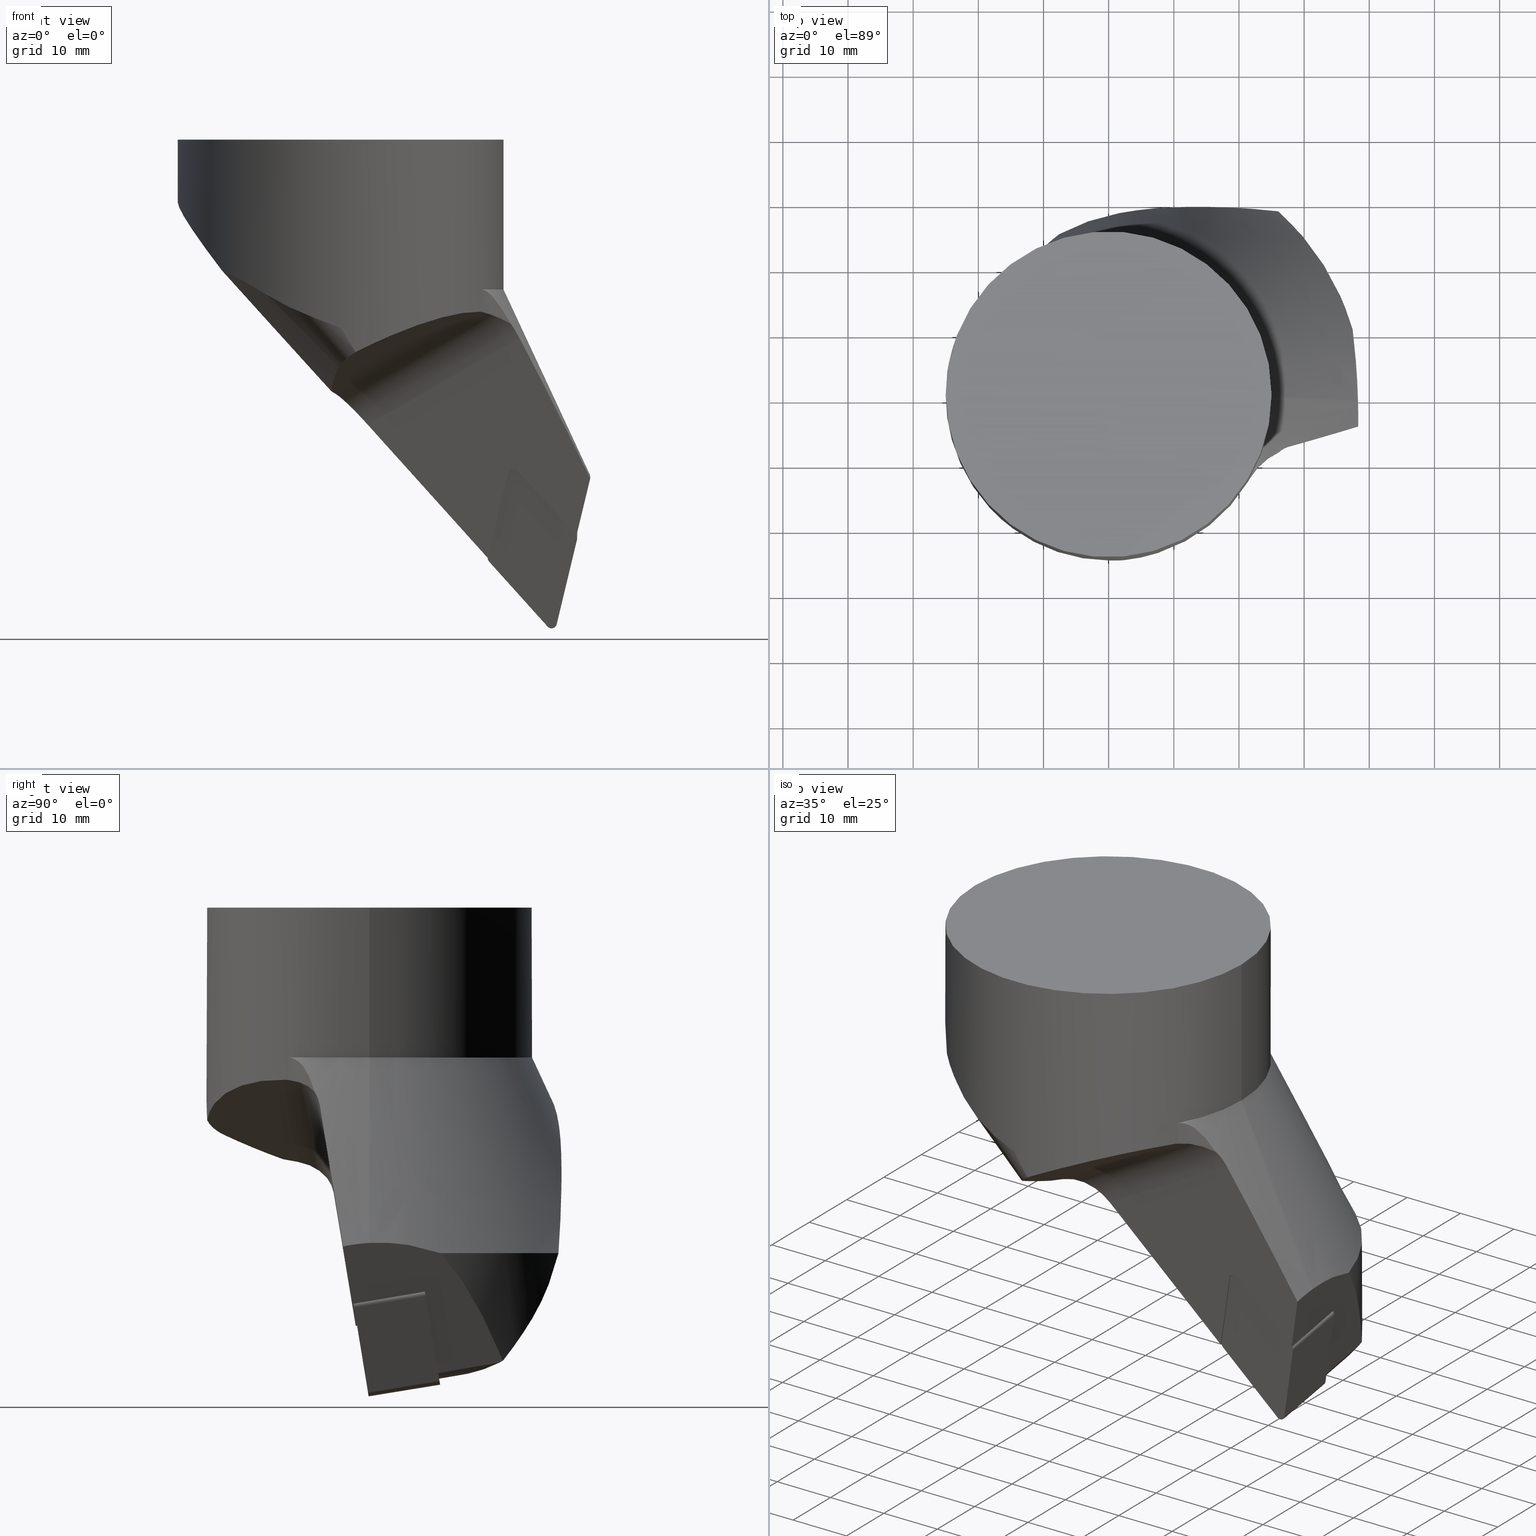
[diagram: canonical four-view strip — front | top / right | iso, engineering-drawing reading convention]
A machine part, canonical four-view strip (front | top / right | iso — engineering-drawing reading convention). The complete STEP part file that produces these views, byte-faithful:
ISO-10303-21;
HEADER;
FILE_DESCRIPTION((''),'1');
FILE_NAME('//Big_tech03/bigt/Translate/11_3D_Field/02_Step_Field/91_\X2\65CB524A30C430FC30EB\X0\/S\X2\30AB30FC30C830EA30C330B8\X0\/S50-DDJNL-33075-15.stp','2012-12-26T08:06:41',(''),(''),'Spatial Interop R18','Kubotek KeyCreator V8.5.1 (14335)',' ');
FILE_SCHEMA(('CONFIG_CONTROL_DESIGN'));
ENDSEC;
DATA;
#1=DESIGN_CONTEXT('',#27,'design');
#2=APPLICATION_PROTOCOL_DEFINITION('INTERNATIONAL STANDARD','config_control_design',1994,#27);
#3=PRODUCT_CATEGORY_RELATIONSHIP('NONE','NONE',#28,#29);
#4=DATE_AND_TIME(#30,#31);
#5=DATE_TIME_ROLE('creation_date');
#6=DATE_TIME_ROLE('classification_date');
#7=PERSON_AND_ORGANIZATION_ROLE('creator');
#8=PERSON_AND_ORGANIZATION_ROLE('design_supplier');
#9=PERSON_AND_ORGANIZATION_ROLE('classification_officer');
#10=PERSON_AND_ORGANIZATION_ROLE('design_owner');
#11=APPROVAL_PERSON_ORGANIZATION(#32,#33,#34);
#12=APPROVAL_DATE_TIME(#4,#33);
#13=CC_DESIGN_APPROVAL(#33,(#35,#36,#37));
#14=CC_DESIGN_DATE_AND_TIME_ASSIGNMENT(#4,#5,(#37));
#15=CC_DESIGN_DATE_AND_TIME_ASSIGNMENT(#4,#6,(#35));
#16=CC_DESIGN_PERSON_AND_ORGANIZATION_ASSIGNMENT(#32,#10,(#38));
#17=CC_DESIGN_PERSON_AND_ORGANIZATION_ASSIGNMENT(#32,#7,(#37));
#18=CC_DESIGN_PERSON_AND_ORGANIZATION_ASSIGNMENT(#32,#7,(#36));
#19=CC_DESIGN_PERSON_AND_ORGANIZATION_ASSIGNMENT(#32,#8,(#36));
#20=CC_DESIGN_SECURITY_CLASSIFICATION(#35,(#36));
#21=CC_DESIGN_PERSON_AND_ORGANIZATION_ASSIGNMENT(#32,#9,(#35));
#22=SHAPE_DEFINITION_REPRESENTATION(#39,#40);
#23= (GEOMETRIC_REPRESENTATION_CONTEXT(3)GLOBAL_UNCERTAINTY_ASSIGNED_CONTEXT((#43))GLOBAL_UNIT_ASSIGNED_CONTEXT((#45,#46,#47))REPRESENTATION_CONTEXT('NONE','WORKSPACE'));
#27=APPLICATION_CONTEXT('CONFIGURATION CONTROLLED 3D DESIGNS OF MECHANICAL PARTS AND ASSEMBLIES');
#28=PRODUCT_CATEGORY('part','NONE');
#29=PRODUCT_RELATED_PRODUCT_CATEGORY('detail',' ',(#38));
#30=CALENDAR_DATE(2012,26,11);
#31=LOCAL_TIME(17,6,41.0,#49);
#32=PERSON_AND_ORGANIZATION(#50,#51);
#33=APPROVAL(#52,'SOLID MODEL');
#34=APPROVAL_ROLE('APPROVED');
#35=SECURITY_CLASSIFICATION('','',#53);
#36=PRODUCT_DEFINITION_FORMATION_WITH_SPECIFIED_SOURCE(' ','NONE',#38,.NOT_KNOWN.);
#37=PRODUCT_DEFINITION('NONE','NONE',#36,#1);
#38=PRODUCT('1','1','PART-1-DESC',(#54));
#39=PRODUCT_DEFINITION_SHAPE('NONE','NONE',#37);
#40=ADVANCED_BREP_SHAPE_REPRESENTATION('1',(#55,#56),#23);
#43=UNCERTAINTY_MEASURE_WITH_UNIT(LENGTH_MEASURE(1.0E-006),#45,'','');
#45= (CONVERSION_BASED_UNIT('MILLIMETRE',#59)LENGTH_UNIT()NAMED_UNIT(#62));
#46= (NAMED_UNIT(#64)PLANE_ANGLE_UNIT()SI_UNIT($,.RADIAN.));
#47= (NAMED_UNIT(#64)SOLID_ANGLE_UNIT()SI_UNIT($,.STERADIAN.));
#49=COORDINATED_UNIVERSAL_TIME_OFFSET(9,0,.AHEAD.);
#50=PERSON('','UNSPECIFIED',$,$,$,$);
#51=ORGANIZATION('UNSPECIFIED','UNSPECIFIED','UNSPECIFIED');
#52=APPROVAL_STATUS('approved');
#53=SECURITY_CLASSIFICATION_LEVEL('unclassified');
#54=MECHANICAL_CONTEXT('',#27,'mechanical');
#55=MANIFOLD_SOLID_BREP('1',#70);
#56=AXIS2_PLACEMENT_3D('',#71,#72,#73);
#59=LENGTH_MEASURE_WITH_UNIT(LENGTH_MEASURE(1.0),#74);
#62=DIMENSIONAL_EXPONENTS(1.0,0.0,0.0,0.0,0.0,0.0,0.0);
#64=DIMENSIONAL_EXPONENTS(0.0,0.0,0.0,0.0,0.0,0.0,0.0);
#70=CLOSED_SHELL('',(#75,#76,#77,#78,#79,#80,#81,#82,#83,#84,#85,#86,#87,#88,#89,#90,#91,#92,#93,#94,#95,#96,#97,#98,#99,#100,#101,#102,#103,#104));
#71=CARTESIAN_POINT('',(0.0,0.0,0.0));
#72=DIRECTION('',(0.0,0.0,1.0));
#73=DIRECTION('',(1.0,0.0,0.0));
#74= (NAMED_UNIT(#62)LENGTH_UNIT()SI_UNIT(.MILLI.,.METRE.));
#75=ADVANCED_FACE('',(#106),#107,.T.);
#76=ADVANCED_FACE('',(#108),#109,.T.);
#77=ADVANCED_FACE('',(#110),#111,.T.);
#78=ADVANCED_FACE('',(#112),#113,.T.);
#79=ADVANCED_FACE('',(#114),#115,.T.);
#80=ADVANCED_FACE('',(#116),#117,.T.);
#81=ADVANCED_FACE('',(#118),#119,.F.);
#82=ADVANCED_FACE('',(#120),#121,.F.);
#83=ADVANCED_FACE('',(#122),#123,.F.);
#84=ADVANCED_FACE('',(#124),#125,.F.);
#85=ADVANCED_FACE('',(#126),#127,.F.);
#86=ADVANCED_FACE('',(#128),#129,.F.);
#87=ADVANCED_FACE('',(#130),#131,.F.);
#88=ADVANCED_FACE('',(#132),#133,.T.);
#89=ADVANCED_FACE('',(#134),#135,.T.);
#90=ADVANCED_FACE('',(#136),#137,.T.);
#91=ADVANCED_FACE('',(#138),#139,.T.);
#92=ADVANCED_FACE('',(#140),#141,.F.);
#93=ADVANCED_FACE('',(#142),#143,.T.);
#94=ADVANCED_FACE('',(#144),#145,.T.);
#95=ADVANCED_FACE('',(#146),#147,.T.);
#96=ADVANCED_FACE('',(#148),#149,.F.);
#97=ADVANCED_FACE('',(#150),#151,.F.);
#98=ADVANCED_FACE('',(#152),#153,.F.);
#99=ADVANCED_FACE('',(#154),#155,.F.);
#100=ADVANCED_FACE('',(#156),#157,.T.);
#101=ADVANCED_FACE('',(#158),#159,.T.);
#102=ADVANCED_FACE('',(#160),#161,.T.);
#103=ADVANCED_FACE('',(#162),#163,.T.);
#104=ADVANCED_FACE('',(#164),#165,.T.);
#106=FACE_OUTER_BOUND('',#166,.T.);
#107=PLANE('',#167);
#108=FACE_OUTER_BOUND('',#168,.T.);
#109=CYLINDRICAL_SURFACE('',#169,0.8);
#110=FACE_OUTER_BOUND('',#170,.T.);
#111=PLANE('',#171);
#112=FACE_OUTER_BOUND('',#172,.T.);
#113=CYLINDRICAL_SURFACE('',#173,0.8);
#114=FACE_OUTER_BOUND('',#174,.T.);
#115=PLANE('',#175);
#116=FACE_OUTER_BOUND('',#176,.T.);
#117=CYLINDRICAL_SURFACE('',#177,0.8);
#118=FACE_OUTER_BOUND('',#178,.T.);
#119=PLANE('',#179);
#120=FACE_OUTER_BOUND('',#180,.T.);
#121=CYLINDRICAL_SURFACE('',#181,0.8);
#122=FACE_OUTER_BOUND('',#182,.T.);
#123=PLANE('',#183);
#124=FACE_OUTER_BOUND('',#184,.T.);
#125=CYLINDRICAL_SURFACE('',#185,0.8);
#126=FACE_OUTER_BOUND('',#186,.T.);
#127=PLANE('',#187);
#128=FACE_OUTER_BOUND('',#188,.T.);
#129=CYLINDRICAL_SURFACE('',#189,0.8);
#130=FACE_OUTER_BOUND('',#190,.T.);
#131=PLANE('',#191);
#132=FACE_OUTER_BOUND('',#192,.T.);
#133=CYLINDRICAL_SURFACE('',#193,1.19999999999998);
#134=FACE_OUTER_BOUND('',#194,.T.);
#135=CONICAL_SURFACE('',#195,26.9313548263841,0.436332312500001);
#136=FACE_OUTER_BOUND('',#196,.T.);
#137=CYLINDRICAL_SURFACE('',#197,25.0);
#138=FACE_OUTER_BOUND('',#198,.T.);
#139=CYLINDRICAL_SURFACE('',#199,1.2);
#140=FACE_OUTER_BOUND('',#200,.T.);
#141=PLANE('',#201);
#142=FACE_OUTER_BOUND('',#202,.T.);
#143=CYLINDRICAL_SURFACE('',#203,50.0);
#144=FACE_OUTER_BOUND('',#204,.T.);
#145=CYLINDRICAL_SURFACE('',#205,25.0);
#146=FACE_OUTER_BOUND('',#206,.T.);
#147=CONICAL_SURFACE('',#207,27.0006661589101,0.4363323125);
#148=FACE_OUTER_BOUND('',#208,.T.);
#149=CYLINDRICAL_SURFACE('',#209,8.00000000000002);
#150=FACE_OUTER_BOUND('',#210,.T.);
#151=PLANE('',#211);
#152=FACE_OUTER_BOUND('',#212,.T.);
#153=PLANE('',#213);
#154=FACE_OUTER_BOUND('',#214,.T.);
#155=CYLINDRICAL_SURFACE('',#215,10.0);
#156=FACE_OUTER_BOUND('',#216,.T.);
#157=CYLINDRICAL_SURFACE('',#217,5.0);
#158=FACE_OUTER_BOUND('',#218,.T.);
#159=CYLINDRICAL_SURFACE('',#219,50.0);
#160=FACE_OUTER_BOUND('',#220,.T.);
#161=CYLINDRICAL_SURFACE('',#221,9.99999999999998);
#162=FACE_OUTER_BOUND('',#222,.T.);
#163=CYLINDRICAL_SURFACE('',#223,39.0);
#164=FACE_OUTER_BOUND('',#224,.T.);
#165=PLANE('',#225);
#166=EDGE_LOOP('',(#226,#227,#228,#229,#230,#231,#232,#233,#234));
#167=AXIS2_PLACEMENT_3D('',#235,#236,#237);
#168=EDGE_LOOP('',(#238,#239,#240,#241));
#169=AXIS2_PLACEMENT_3D('',#242,#243,#244);
#170=EDGE_LOOP('',(#245,#246,#247,#248));
#171=AXIS2_PLACEMENT_3D('',#249,#250,#251);
#172=EDGE_LOOP('',(#252,#253,#254,#255));
#173=AXIS2_PLACEMENT_3D('',#256,#257,#258);
#174=EDGE_LOOP('',(#259,#260,#261,#262));
#175=AXIS2_PLACEMENT_3D('',#263,#264,#265);
#176=EDGE_LOOP('',(#266,#267,#268,#269));
#177=AXIS2_PLACEMENT_3D('',#270,#271,#272);
#178=EDGE_LOOP('',(#273,#274,#275,#276,#277,#278,#279,#280,#281,#282));
#179=AXIS2_PLACEMENT_3D('',#283,#284,#285);
#180=EDGE_LOOP('',(#286,#287,#288,#289));
#181=AXIS2_PLACEMENT_3D('',#290,#291,#292);
#182=EDGE_LOOP('',(#293,#294,#295,#296));
#183=AXIS2_PLACEMENT_3D('',#297,#298,#299);
#184=EDGE_LOOP('',(#300,#301,#302,#303));
#185=AXIS2_PLACEMENT_3D('',#304,#305,#306);
#186=EDGE_LOOP('',(#307,#308,#309,#310));
#187=AXIS2_PLACEMENT_3D('',#311,#312,#313);
#188=EDGE_LOOP('',(#314,#315,#316,#317));
#189=AXIS2_PLACEMENT_3D('',#318,#319,#320);
#190=EDGE_LOOP('',(#321,#322,#323,#324,#325,#326,#327,#328,#329));
#191=AXIS2_PLACEMENT_3D('',#330,#331,#332);
#192=EDGE_LOOP('',(#333,#334,#335,#336));
#193=AXIS2_PLACEMENT_3D('',#337,#338,#339);
#194=EDGE_LOOP('',(#340,#341,#342,#343,#344,#345));
#195=AXIS2_PLACEMENT_3D('',#346,#347,#348);
#196=EDGE_LOOP('',(#349,#350,#351,#352,#353));
#197=AXIS2_PLACEMENT_3D('',#354,#355,#356);
#198=EDGE_LOOP('',(#357,#358,#359,#360));
#199=AXIS2_PLACEMENT_3D('',#361,#362,#363);
#200=EDGE_LOOP('',(#364,#365,#366,#367,#368,#369,#370,#371,#372,#373,#374,#375,#376));
#201=AXIS2_PLACEMENT_3D('',#377,#378,#379);
#202=EDGE_LOOP('',(#380,#381,#382,#383,#384,#385));
#203=AXIS2_PLACEMENT_3D('',#386,#387,#388);
#204=EDGE_LOOP('',(#389,#390,#391,#392,#393,#394,#395,#396,#397,#398,#399));
#205=AXIS2_PLACEMENT_3D('',#400,#401,#402);
#206=EDGE_LOOP('',(#403,#404,#405,#406,#407,#408));
#207=AXIS2_PLACEMENT_3D('',#409,#410,#411);
#208=EDGE_LOOP('',(#412,#413,#414,#415,#416,#417));
#209=AXIS2_PLACEMENT_3D('',#418,#419,#420);
#210=EDGE_LOOP('',(#421,#422,#423,#424,#425));
#211=AXIS2_PLACEMENT_3D('',#426,#427,#428);
#212=EDGE_LOOP('',(#429,#430,#431,#432,#433,#434,#435,#436,#437));
#213=AXIS2_PLACEMENT_3D('',#438,#439,#440);
#214=EDGE_LOOP('',(#441,#442,#443));
#215=AXIS2_PLACEMENT_3D('',#444,#445,#446);
#216=EDGE_LOOP('',(#447,#448,#449,#450));
#217=AXIS2_PLACEMENT_3D('',#451,#452,#453);
#218=EDGE_LOOP('',(#454,#455,#456,#457));
#219=AXIS2_PLACEMENT_3D('',#458,#459,#460);
#220=EDGE_LOOP('',(#461,#462,#463,#464));
#221=AXIS2_PLACEMENT_3D('',#465,#466,#467);
#222=EDGE_LOOP('',(#468,#469,#470,#471));
#223=AXIS2_PLACEMENT_3D('',#472,#473,#474);
#224=EDGE_LOOP('',(#475,#476));
#225=AXIS2_PLACEMENT_3D('',#477,#478,#479);
#226=ORIENTED_EDGE('',*,*,#480,.F.);
#227=ORIENTED_EDGE('',*,*,#481,.F.);
#228=ORIENTED_EDGE('',*,*,#482,.F.);
#229=ORIENTED_EDGE('',*,*,#483,.F.);
#230=ORIENTED_EDGE('',*,*,#484,.F.);
#231=ORIENTED_EDGE('',*,*,#485,.F.);
#232=ORIENTED_EDGE('',*,*,#486,.F.);
#233=ORIENTED_EDGE('',*,*,#487,.F.);
#234=ORIENTED_EDGE('',*,*,#488,.F.);
#235=CARTESIAN_POINT('',(30.9993582105046,9.83061637929432,-66.9033376882254));
#236=DIRECTION('',(0.00316960438547729,0.986980052759554,0.160811470557257));
#237=DIRECTION('',(7.03793553541952E-020,-0.160812278350876,0.986985010591144));
#238=ORIENTED_EDGE('',*,*,#489,.F.);
#239=ORIENTED_EDGE('',*,*,#490,.T.);
#240=ORIENTED_EDGE('',*,*,#491,.F.);
#241=ORIENTED_EDGE('',*,*,#484,.T.);
#242=CARTESIAN_POINT('',(35.531957183395,8.59580846484717,-59.4140445999063));
#243=DIRECTION('',(0.00316960438547709,0.986980052759554,0.160811470557257));
#244=DIRECTION('',(0.973053548775183,0.0340325882120342,-0.228053884324762));
#245=ORIENTED_EDGE('',*,*,#492,.T.);
#246=ORIENTED_EDGE('',*,*,#493,.F.);
#247=ORIENTED_EDGE('',*,*,#485,.T.);
#248=ORIENTED_EDGE('',*,*,#491,.T.);
#249=CARTESIAN_POINT('',(36.3104000224152,8.62303453541679,-59.5964877073661));
#250=DIRECTION('',(0.973053548775185,0.0340325882120334,-0.228053884324757));
#251=DIRECTION('',(-0.228186067107871,-1.51135052082345E-018,-0.973617542353178));
#252=ORIENTED_EDGE('',*,*,#494,.T.);
#253=ORIENTED_EDGE('',*,*,#495,.F.);
#254=ORIENTED_EDGE('',*,*,#486,.T.);
#255=ORIENTED_EDGE('',*,*,#493,.T.);
#256=CARTESIAN_POINT('',(32.4077656696003,10.725976182978,-72.4263663481813));
#257=DIRECTION('',(0.00316960438547709,0.986980052759554,0.160811470557257));
#258=DIRECTION('',(-0.746982205944665,0.109251240252169,-0.655806183643769));
#259=ORIENTED_EDGE('',*,*,#496,.T.);
#260=ORIENTED_EDGE('',*,*,#497,.F.);
#261=ORIENTED_EDGE('',*,*,#487,.T.);
#262=ORIENTED_EDGE('',*,*,#495,.T.);
#263=CARTESIAN_POINT('',(31.8101799048445,10.8133771751797,-72.9510112950963));
#264=DIRECTION('',(-0.746982205944656,0.109251240252171,-0.655806183643779));
#265=DIRECTION('',(-0.659755368333982,0.0,0.751480441498308));
#266=ORIENTED_EDGE('',*,*,#498,.F.);
#267=ORIENTED_EDGE('',*,*,#488,.T.);
#268=ORIENTED_EDGE('',*,*,#497,.T.);
#269=ORIENTED_EDGE('',*,*,#499,.T.);
#270=CARTESIAN_POINT('',(23.3988339131563,9.12640044522891,-62.4314070951477));
#271=DIRECTION('',(0.0031696043854771,0.986980052759554,0.160811470557257));
#272=DIRECTION('',(-0.973053548775188,-0.0340325882120308,0.228053884324741));
#273=ORIENTED_EDGE('',*,*,#499,.F.);
#274=ORIENTED_EDGE('',*,*,#496,.F.);
#275=ORIENTED_EDGE('',*,*,#494,.F.);
#276=ORIENTED_EDGE('',*,*,#492,.F.);
#277=ORIENTED_EDGE('',*,*,#490,.F.);
#278=ORIENTED_EDGE('',*,*,#500,.F.);
#279=ORIENTED_EDGE('',*,*,#501,.F.);
#280=ORIENTED_EDGE('',*,*,#502,.F.);
#281=ORIENTED_EDGE('',*,*,#503,.F.);
#282=ORIENTED_EDGE('',*,*,#504,.F.);
#283=CARTESIAN_POINT('',(30.964143905782,-1.13473200686432,-68.6899531261165));
#284=DIRECTION('',(0.00316960438547729,0.986980052759554,0.160811470557257));
#285=DIRECTION('',(-1.08344308742029E-020,-0.160812278350876,0.986985010591144));
#286=ORIENTED_EDGE('',*,*,#504,.T.);
#287=ORIENTED_EDGE('',*,*,#505,.T.);
#288=ORIENTED_EDGE('',*,*,#506,.F.);
#289=ORIENTED_EDGE('',*,*,#507,.F.);
#290=CARTESIAN_POINT('',(23.3636513044775,-1.82907814040214,-64.2164144183333));
#291=DIRECTION('',(-0.00316960438547736,-0.986980052759554,-0.160811470557257));
#292=DIRECTION('',(-0.973053548775185,-0.0340325882120324,0.228053884324753));
#293=ORIENTED_EDGE('',*,*,#503,.T.);
#294=ORIENTED_EDGE('',*,*,#508,.T.);
#295=ORIENTED_EDGE('',*,*,#509,.F.);
#296=ORIENTED_EDGE('',*,*,#505,.F.);
#297=CARTESIAN_POINT('',(25.7093999792521,-3.98647192910258,-51.0216495625987));
#298=DIRECTION('',(-0.973053548775186,-0.0340325882120324,0.228053884324753));
#299=DIRECTION('',(0.228186067107867,0.0,0.973617542353179));
#300=ORIENTED_EDGE('',*,*,#502,.T.);
#301=ORIENTED_EDGE('',*,*,#510,.T.);
#302=ORIENTED_EDGE('',*,*,#511,.F.);
#303=ORIENTED_EDGE('',*,*,#508,.F.);
#304=CARTESIAN_POINT('',(26.4878428182722,-3.95924585853295,-51.2040926700585));
#305=DIRECTION('',(-0.00316960438547736,-0.986980052759554,-0.160811470557257));
#306=DIRECTION('',(0.746982205944652,-0.109251240252171,0.655806183643783));
#307=ORIENTED_EDGE('',*,*,#501,.T.);
#308=ORIENTED_EDGE('',*,*,#512,.T.);
#309=ORIENTED_EDGE('',*,*,#513,.F.);
#310=ORIENTED_EDGE('',*,*,#510,.F.);
#311=CARTESIAN_POINT('',(36.094360339472,-2.44707111298563,-60.6744069761769));
#312=DIRECTION('',(0.746982205944649,-0.109251240252172,0.655806183643786));
#313=DIRECTION('',(0.65975536833399,0.0,-0.751480441498301));
#314=ORIENTED_EDGE('',*,*,#500,.T.);
#315=ORIENTED_EDGE('',*,*,#514,.F.);
#316=ORIENTED_EDGE('',*,*,#515,.F.);
#317=ORIENTED_EDGE('',*,*,#512,.F.);
#318=CARTESIAN_POINT('',(35.4967745747162,-2.35967012078389,-61.1990519230919));
#319=DIRECTION('',(-0.00316960438547737,-0.986980052759554,-0.160811470557257));
#320=DIRECTION('',(0.973053548775185,0.034032588212033,-0.228053884324757));
#321=ORIENTED_EDGE('',*,*,#514,.T.);
#322=ORIENTED_EDGE('',*,*,#489,.T.);
#323=ORIENTED_EDGE('',*,*,#483,.T.);
#324=ORIENTED_EDGE('',*,*,#516,.T.);
#325=ORIENTED_EDGE('',*,*,#517,.F.);
#326=ORIENTED_EDGE('',*,*,#518,.T.);
#327=ORIENTED_EDGE('',*,*,#519,.T.);
#328=ORIENTED_EDGE('',*,*,#520,.T.);
#329=ORIENTED_EDGE('',*,*,#521,.F.);
#330=CARTESIAN_POINT('',(35.4310017147911,8.21989750612639,-62.0830437623117));
#331=DIRECTION('',(-0.972812710737959,-0.0402762684875891,0.228064140152238));
#332=DIRECTION('',(0.228249345803035,0.0,0.973602709600013));
#333=ORIENTED_EDGE('',*,*,#482,.T.);
#334=ORIENTED_EDGE('',*,*,#522,.F.);
#335=ORIENTED_EDGE('',*,*,#523,.F.);
#336=ORIENTED_EDGE('',*,*,#516,.F.);
#337=CARTESIAN_POINT('',(31.973402862197,15.740179264078,-70.2417451873097));
#338=DIRECTION('',(0.00316409313760425,-0.986981129763239,-0.160804968847038));
#339=DIRECTION('',(0.702642552196438,-0.112225359971542,0.702637112898354));
#340=ORIENTED_EDGE('',*,*,#524,.F.);
#341=ORIENTED_EDGE('',*,*,#525,.T.);
#342=ORIENTED_EDGE('',*,*,#526,.F.);
#343=ORIENTED_EDGE('',*,*,#527,.F.);
#344=ORIENTED_EDGE('',*,*,#528,.F.);
#345=ORIENTED_EDGE('',*,*,#520,.F.);
#346=CARTESIAN_POINT('',(2.1316282072803E-013,8.32667268468867E-015,-27.141803776991));
#347=DIRECTION('',(-3.06258709436205E-015,-4.42258216952416E-016,-1.0));
#348=DIRECTION('',(-0.258819045102521,-0.965925826289068,1.21984450094898E-015));
#349=ORIENTED_EDGE('',*,*,#529,.F.);
#350=ORIENTED_EDGE('',*,*,#530,.F.);
#351=ORIENTED_EDGE('',*,*,#531,.F.);
#352=ORIENTED_EDGE('',*,*,#532,.F.);
#353=ORIENTED_EDGE('',*,*,#533,.T.);
#354=CARTESIAN_POINT('',(-1.11022302462516E-015,1.33226762955019E-014,-18.4000000000001));
#355=DIRECTION('',(-0.0,-0.0,1.0));
#356=DIRECTION('',(4.44089209850063E-016,-1.0,0.0));
#357=ORIENTED_EDGE('',*,*,#481,.T.);
#358=ORIENTED_EDGE('',*,*,#534,.F.);
#359=ORIENTED_EDGE('',*,*,#535,.F.);
#360=ORIENTED_EDGE('',*,*,#522,.T.);
#361=CARTESIAN_POINT('',(31.9855989229922,11.9358405993162,-70.8615711819742));
#362=DIRECTION('',(0.00316409313760482,-0.98698112976324,-0.160804968847034));
#363=DIRECTION('',(0.955605991774162,0.0503628271505242,-0.290311512218732));
#364=ORIENTED_EDGE('',*,*,#498,.T.);
#365=ORIENTED_EDGE('',*,*,#507,.T.);
#366=ORIENTED_EDGE('',*,*,#536,.F.);
#367=ORIENTED_EDGE('',*,*,#537,.F.);
#368=ORIENTED_EDGE('',*,*,#538,.F.);
#369=ORIENTED_EDGE('',*,*,#539,.F.);
#370=ORIENTED_EDGE('',*,*,#540,.T.);
#371=ORIENTED_EDGE('',*,*,#531,.T.);
#372=ORIENTED_EDGE('',*,*,#541,.T.);
#373=ORIENTED_EDGE('',*,*,#542,.F.);
#374=ORIENTED_EDGE('',*,*,#543,.F.);
#375=ORIENTED_EDGE('',*,*,#534,.T.);
#376=ORIENTED_EDGE('',*,*,#480,.T.);
#377=CARTESIAN_POINT('',(3.32393815811423,3.91955957830375,-41.2910829300336));
#378=DIRECTION('',(0.747674819359016,-0.104449876194447,0.65579919781853));
#379=DIRECTION('',(0.659406048633121,-9.27701259762574E-018,-0.751786979819452));
#380=ORIENTED_EDGE('',*,*,#523,.T.);
#381=ORIENTED_EDGE('',*,*,#535,.T.);
#382=ORIENTED_EDGE('',*,*,#543,.T.);
#383=ORIENTED_EDGE('',*,*,#544,.F.);
#384=ORIENTED_EDGE('',*,*,#545,.T.);
#385=ORIENTED_EDGE('',*,*,#517,.T.);
#386=CARTESIAN_POINT('',(57.9771792632522,-4.88498130835069E-014,-29.8321865695468));
#387=DIRECTION('',(-0.707106781186553,-4.54747350886464E-016,0.707106781186542));
#388=DIRECTION('',(-0.261634301511457,-0.929029054736838,-0.261634301511461));
#389=ORIENTED_EDGE('',*,*,#529,.T.);
#390=ORIENTED_EDGE('',*,*,#546,.T.);
#391=ORIENTED_EDGE('',*,*,#532,.T.);
#392=ORIENTED_EDGE('',*,*,#540,.F.);
#393=ORIENTED_EDGE('',*,*,#547,.F.);
#394=ORIENTED_EDGE('',*,*,#548,.F.);
#395=ORIENTED_EDGE('',*,*,#549,.F.);
#396=ORIENTED_EDGE('',*,*,#550,.F.);
#397=ORIENTED_EDGE('',*,*,#551,.F.);
#398=ORIENTED_EDGE('',*,*,#552,.F.);
#399=ORIENTED_EDGE('',*,*,#525,.F.);
#400=CARTESIAN_POINT('',(-1.11022302462516E-015,1.77635683940025E-014,-26.0787791435518));
#401=DIRECTION('',(-0.0,-0.0,1.0));
#402=DIRECTION('',(-6.21724893790088E-016,1.0,0.0));
#403=ORIENTED_EDGE('',*,*,#524,.T.);
#404=ORIENTED_EDGE('',*,*,#519,.F.);
#405=ORIENTED_EDGE('',*,*,#553,.F.);
#406=ORIENTED_EDGE('',*,*,#554,.F.);
#407=ORIENTED_EDGE('',*,*,#541,.F.);
#408=ORIENTED_EDGE('',*,*,#530,.T.);
#409=CARTESIAN_POINT('',(1.19904086659517E-013,1.49880108324396E-014,-27.2904424094562));
#410=DIRECTION('',(-2.05163256042731E-016,-2.1001950482814E-017,-1.0));
#411=DIRECTION('',(0.837501743109383,-0.546434653264913,-1.60348391027821E-016));
#412=ORIENTED_EDGE('',*,*,#527,.T.);
#413=ORIENTED_EDGE('',*,*,#555,.T.);
#414=ORIENTED_EDGE('',*,*,#551,.T.);
#415=ORIENTED_EDGE('',*,*,#556,.F.);
#416=ORIENTED_EDGE('',*,*,#537,.T.);
#417=ORIENTED_EDGE('',*,*,#557,.T.);
#418=CARTESIAN_POINT('',(23.7622692307713,-15.1402344104098,-33.8700730139728));
#419=DIRECTION('',(-0.866278708929212,0.0776257556945035,-0.493493100771221));
#420=DIRECTION('',(0.419616961756508,0.649107543236308,-0.634492712897447));
#421=ORIENTED_EDGE('',*,*,#550,.T.);
#422=ORIENTED_EDGE('',*,*,#558,.T.);
#423=ORIENTED_EDGE('',*,*,#559,.T.);
#424=ORIENTED_EDGE('',*,*,#538,.T.);
#425=ORIENTED_EDGE('',*,*,#556,.T.);
#426=CARTESIAN_POINT('',(9.26498906134857,-17.4693949310062,-31.3883300595164));
#427=DIRECTION('',(-0.454084151620467,0.289450672272156,0.842630340996761));
#428=DIRECTION('',(0.880314002717103,-1.28541920339911E-017,0.474391459261434));
#429=ORIENTED_EDGE('',*,*,#515,.T.);
#430=ORIENTED_EDGE('',*,*,#521,.T.);
#431=ORIENTED_EDGE('',*,*,#528,.T.);
#432=ORIENTED_EDGE('',*,*,#557,.F.);
#433=ORIENTED_EDGE('',*,*,#536,.T.);
#434=ORIENTED_EDGE('',*,*,#506,.T.);
#435=ORIENTED_EDGE('',*,*,#509,.T.);
#436=ORIENTED_EDGE('',*,*,#511,.T.);
#437=ORIENTED_EDGE('',*,*,#513,.T.);
#438=CARTESIAN_POINT('',(21.2345644583681,-4.04323032193865,-52.280769832168));
#439=DIRECTION('',(-0.00316409320555536,0.986981129783827,0.160804968719335));
#440=DIRECTION('',(0.0,-0.16080577367371,0.986986070394714));
#441=ORIENTED_EDGE('',*,*,#555,.F.);
#442=ORIENTED_EDGE('',*,*,#526,.T.);
#443=ORIENTED_EDGE('',*,*,#552,.T.);
#444=CARTESIAN_POINT('',(30.3108891324553,-17.5,-27.1801039089024));
#445=DIRECTION('',(0.0,-0.0,1.0));
#446=DIRECTION('',(-0.738250032998897,-0.674527159406593,0.0));
#447=ORIENTED_EDGE('',*,*,#558,.F.);
#448=ORIENTED_EDGE('',*,*,#549,.T.);
#449=ORIENTED_EDGE('',*,*,#548,.T.);
#450=ORIENTED_EDGE('',*,*,#560,.F.);
#451=CARTESIAN_POINT('',(1.67656059626177,-20.0,-30.5403391575135));
#452=DIRECTION('',(-0.707106781186553,-6.03961325396086E-016,0.707106781186542));
#453=DIRECTION('',(0.60092521257733,-0.527046276694722,0.600925212577339));
#454=ORIENTED_EDGE('',*,*,#559,.F.);
#455=ORIENTED_EDGE('',*,*,#560,.T.);
#456=ORIENTED_EDGE('',*,*,#547,.T.);
#457=ORIENTED_EDGE('',*,*,#539,.T.);
#458=CARTESIAN_POINT('',(29.5803656550733,-6.66133814775094E-015,-1.43537296136821));
#459=DIRECTION('',(-0.707106781186551,-3.86535248253495E-016,0.707106781186544));
#460=DIRECTION('',(0.252022203677815,-0.934328431391636,0.252022203677817));
#461=ORIENTED_EDGE('',*,*,#561,.T.);
#462=ORIENTED_EDGE('',*,*,#544,.T.);
#463=ORIENTED_EDGE('',*,*,#542,.T.);
#464=ORIENTED_EDGE('',*,*,#554,.T.);
#465=CARTESIAN_POINT('',(28.5461566551938,20.0,-49.390958817152));
#466=DIRECTION('',(-0.707106781186551,-1.77635683940026E-016,0.707106781186544));
#467=DIRECTION('',(-0.547615356615699,-0.632641164007935,-0.547615356615705));
#468=ORIENTED_EDGE('',*,*,#561,.F.);
#469=ORIENTED_EDGE('',*,*,#553,.T.);
#470=ORIENTED_EDGE('',*,*,#518,.F.);
#471=ORIENTED_EDGE('',*,*,#545,.F.);
#472=CARTESIAN_POINT('',(3.15303338993544E-013,-8.88178419700125E-015,-66.2276830010954));
#473=DIRECTION('',(-0.0,-0.0,1.0));
#474=DIRECTION('',(-0.532232757419663,0.846598069882906,0.0));
#475=ORIENTED_EDGE('',*,*,#533,.F.);
#476=ORIENTED_EDGE('',*,*,#546,.F.);
#477=CARTESIAN_POINT('',(0.0,0.0,7.105427E-014));
#478=DIRECTION('',(0.0,0.0,1.0));
#479=DIRECTION('',(1.0,0.0,0.0));
#480=EDGE_CURVE('',#562,#563,#564,.T.);
#481=EDGE_CURVE('',#565,#562,#566,.T.);
#482=EDGE_CURVE('',#567,#565,#568,.T.);
#483=EDGE_CURVE('',#569,#567,#570,.T.);
#484=EDGE_CURVE('',#571,#569,#572,.T.);
#485=EDGE_CURVE('',#573,#571,#574,.T.);
#486=EDGE_CURVE('',#575,#573,#576,.T.);
#487=EDGE_CURVE('',#577,#575,#578,.T.);
#488=EDGE_CURVE('',#563,#577,#579,.T.);
#489=EDGE_CURVE('',#580,#569,#581,.T.);
#490=EDGE_CURVE('',#580,#582,#583,.T.);
#491=EDGE_CURVE('',#571,#582,#584,.T.);
#492=EDGE_CURVE('',#582,#585,#586,.T.);
#493=EDGE_CURVE('',#573,#585,#587,.T.);
#494=EDGE_CURVE('',#585,#588,#589,.T.);
#495=EDGE_CURVE('',#575,#588,#590,.T.);
#496=EDGE_CURVE('',#588,#591,#592,.T.);
#497=EDGE_CURVE('',#577,#591,#593,.T.);
#498=EDGE_CURVE('',#563,#594,#595,.T.);
#499=EDGE_CURVE('',#591,#594,#596,.T.);
#500=EDGE_CURVE('',#597,#580,#598,.T.);
#501=EDGE_CURVE('',#599,#597,#600,.T.);
#502=EDGE_CURVE('',#601,#599,#602,.T.);
#503=EDGE_CURVE('',#603,#601,#604,.T.);
#504=EDGE_CURVE('',#594,#603,#605,.T.);
#505=EDGE_CURVE('',#603,#606,#607,.T.);
#506=EDGE_CURVE('',#608,#606,#609,.T.);
#507=EDGE_CURVE('',#594,#608,#610,.T.);
#508=EDGE_CURVE('',#601,#611,#612,.T.);
#509=EDGE_CURVE('',#606,#611,#613,.T.);
#510=EDGE_CURVE('',#599,#614,#615,.T.);
#511=EDGE_CURVE('',#611,#614,#616,.T.);
#512=EDGE_CURVE('',#597,#617,#618,.T.);
#513=EDGE_CURVE('',#614,#617,#619,.T.);
#514=EDGE_CURVE('',#620,#580,#621,.T.);
#515=EDGE_CURVE('',#617,#620,#622,.T.);
#516=EDGE_CURVE('',#567,#623,#624,.T.);
#517=EDGE_CURVE('',#625,#623,#626,.T.);
#518=EDGE_CURVE('',#625,#627,#628,.T.);
#519=EDGE_CURVE('',#627,#629,#630,.T.);
#520=EDGE_CURVE('',#629,#631,#632,.T.);
#521=EDGE_CURVE('',#620,#631,#633,.T.);
#522=EDGE_CURVE('',#634,#565,#635,.T.);
#523=EDGE_CURVE('',#623,#634,#636,.T.);
#524=EDGE_CURVE('',#637,#629,#638,.T.);
#525=EDGE_CURVE('',#637,#639,#640,.T.);
#526=EDGE_CURVE('',#641,#639,#642,.T.);
#527=EDGE_CURVE('',#643,#641,#644,.T.);
#528=EDGE_CURVE('',#631,#643,#645,.T.);
#529=EDGE_CURVE('',#637,#646,#647,.T.);
#530=EDGE_CURVE('',#648,#637,#649,.T.);
#531=EDGE_CURVE('',#650,#648,#651,.T.);
#532=EDGE_CURVE('',#652,#650,#653,.T.);
#533=EDGE_CURVE('',#652,#646,#654,.T.);
#534=EDGE_CURVE('',#655,#562,#656,.T.);
#535=EDGE_CURVE('',#634,#655,#657,.T.);
#536=EDGE_CURVE('',#658,#608,#659,.T.);
#537=EDGE_CURVE('',#660,#658,#661,.T.);
#538=EDGE_CURVE('',#662,#660,#663,.T.);
#539=EDGE_CURVE('',#664,#662,#665,.T.);
#540=EDGE_CURVE('',#664,#650,#666,.T.);
#541=EDGE_CURVE('',#648,#667,#668,.T.);
#542=EDGE_CURVE('',#669,#667,#670,.T.);
#543=EDGE_CURVE('',#655,#669,#671,.T.);
#544=EDGE_CURVE('',#672,#669,#673,.T.);
#545=EDGE_CURVE('',#672,#625,#674,.T.);
#546=EDGE_CURVE('',#646,#652,#675,.T.);
#547=EDGE_CURVE('',#676,#664,#677,.T.);
#548=EDGE_CURVE('',#678,#676,#679,.T.);
#549=EDGE_CURVE('',#680,#678,#681,.T.);
#550=EDGE_CURVE('',#682,#680,#683,.T.);
#551=EDGE_CURVE('',#684,#682,#685,.T.);
#552=EDGE_CURVE('',#639,#684,#686,.T.);
#553=EDGE_CURVE('',#687,#627,#688,.T.);
#554=EDGE_CURVE('',#667,#687,#689,.T.);
#555=EDGE_CURVE('',#641,#684,#690,.T.);
#556=EDGE_CURVE('',#660,#682,#691,.T.);
#557=EDGE_CURVE('',#658,#643,#692,.T.);
#558=EDGE_CURVE('',#680,#693,#694,.T.);
#559=EDGE_CURVE('',#693,#662,#695,.T.);
#560=EDGE_CURVE('',#693,#676,#696,.T.);
#561=EDGE_CURVE('',#687,#672,#697,.T.);
#562=VERTEX_POINT('',#698);
#563=VERTEX_POINT('',#699);
#564=LINE('',#700,#701);
#565=VERTEX_POINT('',#702);
#566=ELLIPSE('',#703,1.20002406994344,1.2);
#567=VERTEX_POINT('',#704);
#568=ELLIPSE('',#705,1.20002406994342,1.19999999999998);
#569=VERTEX_POINT('',#706);
#570=LINE('',#707,#708);
#571=VERTEX_POINT('',#709);
#572=CIRCLE('',#710,0.8);
#573=VERTEX_POINT('',#711);
#574=LINE('',#712,#713);
#575=VERTEX_POINT('',#714);
#576=CIRCLE('',#715,0.8);
#577=VERTEX_POINT('',#716);
#578=LINE('',#717,#718);
#579=CIRCLE('',#719,0.8);
#580=VERTEX_POINT('',#720);
#581=(B_SPLINE_CURVE(2,(#722,#723,#724),.UNSPECIFIED.,.F.,.F.)B_SPLINE_CURVE_WITH_KNOTS((3,3),(0.207051754619328,1.30763958276126),.UNSPECIFIED.)RATIONAL_B_SPLINE_CURVE((0.999379420469271,0.998037359058196,0.999962111995269))BOUNDED_CURVE()REPRESENTATION_ITEM('')GEOMETRIC_REPRESENTATION_ITEM()CURVE());
#582=VERTEX_POINT('',#731);
#583=CIRCLE('',#732,0.8);
#584=LINE('',#733,#734);
#585=VERTEX_POINT('',#735);
#586=LINE('',#736,#737);
#587=LINE('',#738,#739);
#588=VERTEX_POINT('',#740);
#589=CIRCLE('',#741,0.8);
#590=LINE('',#742,#743);
#591=VERTEX_POINT('',#744);
#592=LINE('',#745,#746);
#593=LINE('',#747,#748);
#594=VERTEX_POINT('',#749);
#595=(B_SPLINE_CURVE(2,(#751,#752,#753),.UNSPECIFIED.,.F.,.F.)B_SPLINE_CURVE_WITH_KNOTS((3,3),(0.0125089488098678,1.17124821887662),.UNSPECIFIED.)RATIONAL_B_SPLINE_CURVE((0.999953237106636,0.997799495400856,0.997896316449267))BOUNDED_CURVE()REPRESENTATION_ITEM('')GEOMETRIC_REPRESENTATION_ITEM()CURVE());
#596=CIRCLE('',#760,0.8);
#597=VERTEX_POINT('',#761);
#598=CIRCLE('',#762,0.8);
#599=VERTEX_POINT('',#763);
#600=LINE('',#764,#765);
#601=VERTEX_POINT('',#766);
#602=CIRCLE('',#767,0.8);
#603=VERTEX_POINT('',#768);
#604=LINE('',#769,#770);
#605=CIRCLE('',#771,0.8);
#606=VERTEX_POINT('',#772);
#607=LINE('',#773,#774);
#608=VERTEX_POINT('',#775);
#609=ELLIPSE('',#776,0.800016046629305,0.800000000000001);
#610=(B_SPLINE_CURVE(2,(#778,#779,#780),.UNSPECIFIED.,.F.,.F.)B_SPLINE_CURVE_WITH_KNOTS((3,3),(1.17124821887662,1.19650555360372),.UNSPECIFIED.)RATIONAL_B_SPLINE_CURVE((0.997896316449267,0.997898426882297,0.997901606603382))BOUNDED_CURVE()REPRESENTATION_ITEM('')GEOMETRIC_REPRESENTATION_ITEM()CURVE());
#611=VERTEX_POINT('',#787);
#612=LINE('',#788,#789);
#613=LINE('',#790,#791);
#614=VERTEX_POINT('',#792);
#615=LINE('',#793,#794);
#616=ELLIPSE('',#795,0.800016046629305,0.8);
#617=VERTEX_POINT('',#796);
#618=LINE('',#797,#798);
#619=LINE('',#799,#800);
#620=VERTEX_POINT('',#801);
#621=(B_SPLINE_CURVE(2,(#803,#804,#805),.UNSPECIFIED.,.F.,.F.)B_SPLINE_CURVE_WITH_KNOTS((3,3),(0.189469977062396,0.207051754619328),.UNSPECIFIED.)RATIONAL_B_SPLINE_CURVE((0.999423132738123,0.999400859762524,0.999379420469271))BOUNDED_CURVE()REPRESENTATION_ITEM('')GEOMETRIC_REPRESENTATION_ITEM()CURVE());
#622=ELLIPSE('',#812,0.800016046629305,0.8);
#623=VERTEX_POINT('',#813);
#624=LINE('',#814,#815);
#625=VERTEX_POINT('',#816);
#626=ELLIPSE('',#817,58.8825390931947,50.0);
#627=VERTEX_POINT('',#818);
#628=ELLIPSE('',#819,171.004525191755,39.0);
#629=VERTEX_POINT('',#820);
#630=(B_SPLINE_CURVE(2,(#822,#823,#824),.UNSPECIFIED.,.F.,.F.)B_SPLINE_CURVE_WITH_KNOTS((3,3),(27.8004387168901,41.3080411589913),.UNSPECIFIED.)RATIONAL_B_SPLINE_CURVE((1.05516988666824,1.0612506906455,1.0602162157745))BOUNDED_CURVE()REPRESENTATION_ITEM('')GEOMETRIC_REPRESENTATION_ITEM()CURVE());
#631=VERTEX_POINT('',#831);
#632=CIRCLE('',#832,27.0290968232824);
#633=LINE('',#833,#834);
#634=VERTEX_POINT('',#835);
#635=LINE('',#836,#837);
#636=B_SPLINE_CURVE_WITH_KNOTS('',3,(#838,#839,#840,#841,#842,#843,#844,#845,#846,#847),.UNSPECIFIED.,.F.,.F.,(4,2,2,2,4),(13.2151195497032,13.4254278661005,15.0255704512031,16.7019704005245,18.1366556444169),.UNSPECIFIED.);
#637=VERTEX_POINT('',#848);
#638=LINE('',#849,#850);
#639=VERTEX_POINT('',#851);
#640=CIRCLE('',#852,25.0);
#641=VERTEX_POINT('',#853);
#642=B_SPLINE_CURVE_WITH_KNOTS('',3,(#854,#855,#856,#857,#858,#859,#860,#861,#862,#863,#864,#865),.UNSPECIFIED.,.F.,.F.,(4,2,2,2,2,4),(13.8410839248823,13.9742974554872,15.9706256634139,19.0522762611604,20.5931015600336,22.1339268589069),.UNSPECIFIED.);
#643=VERTEX_POINT('',#866);
#644=B_SPLINE_CURVE_WITH_KNOTS('',3,(#867,#868,#869,#870,#871,#872,#873,#874),.UNSPECIFIED.,.F.,.F.,(4,2,2,4),(1.99357125253975,2.78534058154978,4.17801087232467,4.60069371737758),.UNSPECIFIED.);
#645=CIRCLE('',#875,715.352040283044);
#646=VERTEX_POINT('',#876);
#647=LINE('',#877,#878);
#648=VERTEX_POINT('',#879);
#649=CIRCLE('',#880,25.0);
#650=VERTEX_POINT('',#881);
#651=ELLIPSE('',#882,38.1214250995746,25.0);
#652=VERTEX_POINT('',#883);
#653=LINE('',#884,#885);
#654=CIRCLE('',#886,25.0);
#655=VERTEX_POINT('',#887);
#656=LINE('',#888,#889);
#657=B_SPLINE_CURVE_WITH_KNOTS('',3,(#890,#891,#892,#893,#894,#895,#896,#897,#898,#899,#900,#901,#902,#903,#904,#905,#906,#907,#908,#909,#910,#911,#912,#913,#914),.UNSPECIFIED.,.F.,.F.,(4,2,2,2,2,2,2,2,2,3,2,4),(18.136655644417,18.3783703498459,20.0547702991674,20.8929702738281,21.3120702611584,21.5216202548236,21.7311702484888,21.8582525907844,21.9217937619322,21.98533493308,22.0365803101918,22.0655062019341),.UNSPECIFIED.);
#658=VERTEX_POINT('',#915);
#659=LINE('',#916,#917);
#660=VERTEX_POINT('',#918);
#661=ELLIPSE('',#919,8.16797308076912,8.0);
#662=VERTEX_POINT('',#920);
#663=LINE('',#921,#922);
#664=VERTEX_POINT('',#923);
#665=ELLIPSE('',#924,769.634827313681,50.0);
#666=ELLIPSE('',#925,38.1214250995746,25.0);
#667=VERTEX_POINT('',#926);
#668=ELLIPSE('',#927,68.6616792424589,37.99082153636);
#669=VERTEX_POINT('',#928);
#670=ELLIPSE('',#929,153.926965462736,10.0);
#671=ELLIPSE('',#930,769.634827313681,50.0);
#672=VERTEX_POINT('',#931);
#673=LINE('',#932,#933);
#674=CIRCLE('',#934,67.729710286218);
#675=CIRCLE('',#935,25.0);
#676=VERTEX_POINT('',#936);
#677=B_SPLINE_CURVE_WITH_KNOTS('',3,(#937,#938,#939,#940,#941,#942,#943,#944,#945,#946,#947,#948),.UNSPECIFIED.,.F.,.F.,(4,2,2,2,2,4),(59.575412048818,59.7168087763301,62.6469278976111,65.5770470188922,68.5071661401733,68.6459225531929),.UNSPECIFIED.);
#678=VERTEX_POINT('',#949);
#679=B_SPLINE_CURVE_WITH_KNOTS('',3,(#950,#951,#952,#953,#954,#955,#956,#957,#958,#959,#960,#961,#962,#963),.UNSPECIFIED.,.F.,.F.,(4,2,2,2,2,2,4),(8.29895309466273E-014,2.15070872064106,4.30141744128212,6.45212616192318,8.60283488256424,10.7535436032053,12.3080953979299),.UNSPECIFIED.);
#680=VERTEX_POINT('',#964);
#681=CIRCLE('',#965,91.0170571207383);
#682=VERTEX_POINT('',#966);
#683=ELLIPSE('',#967,29.6690004900927,25.0);
#684=VERTEX_POINT('',#968);
#685=CIRCLE('',#969,6.16633100412016);
#686=LINE('',#970,#971);
#687=VERTEX_POINT('',#972);
#688=CIRCLE('',#973,39.0);
#689=B_SPLINE_CURVE_WITH_KNOTS('',3,(#974,#975,#976,#977,#978,#979,#980,#981,#982,#983,#984,#985,#986,#987,#988,#989,#990,#991,#992,#993,#994,#995),.UNSPECIFIED.,.F.,.F.,(4,2,2,2,2,2,2,2,2,2,4),(5.38590403565052,8.21193915588639,12.3179087338296,16.4238783117728,20.529847889716,24.6358174676592,28.7417870456024,32.8477566235456,38.8944105542421,44.9410644849387,47.8820155514567),.UNSPECIFIED.);
#690=B_SPLINE_CURVE_WITH_KNOTS('',3,(#996,#997,#998,#999,#1000,#1001,#1002,#1003,#1004,#1005,#1006,#1007),.UNSPECIFIED.,.F.,.F.,(4,2,2,2,2,4),(4.34603372209536,4.96071841316098,5.85285589566756,7.63662561550819,9.42039533534881,10.4865132481081),.UNSPECIFIED.);
#691=LINE('',#1008,#1009);
#692=LINE('',#1010,#1011);
#693=VERTEX_POINT('',#1012);
#694=ELLIPSE('',#1013,5.45306453511873,5.0);
#695=ELLIPSE('',#1014,54.5306453511873,50.0);
#696=LINE('',#1015,#1016);
#697=B_SPLINE_CURVE_WITH_KNOTS('',3,(#1017,#1018,#1019,#1020,#1021,#1022,#1023,#1024),.UNSPECIFIED.,.F.,.F.,(4,2,2,4),(8.25670964065648,11.380040990702,14.7922020646932,19.1852676347604),.UNSPECIFIED.);
#698=CARTESIAN_POINT('',(31.0929414847974,10.6411594680681,-71.8798886749505));
#699=CARTESIAN_POINT('',(22.5988575065545,9.12980303272788,-62.4365228823472));
#700=CARTESIAN_POINT('',(14.093448127305,7.61643146335582,-52.9805659846024));
#701=VECTOR('',#1025,10.0);
#702=CARTESIAN_POINT('',(32.2827211586857,10.6964427646938,-72.2426404220141));
#703=AXIS2_PLACEMENT_3D('',#1026,#1027,#1028);
#704=CARTESIAN_POINT('',(33.1575679076936,10.5512412878216,-71.3687099571979));
#705=AXIS2_PLACEMENT_3D('',#1029,#1030,#1031);
#706=CARTESIAN_POINT('',(36.1593231959554,8.51401943269903,-58.9244300162752));
#707=CARTESIAN_POINT('',(35.3860949175504,9.03879157316146,-62.1299775145465));
#708=VECTOR('',#1032,10.0);
#709=CARTESIAN_POINT('',(36.3104000224152,8.62303453541679,-59.5964877073661));
#710=AXIS2_PLACEMENT_3D('',#1033,#1034,#1035);
#711=CARTESIAN_POINT('',(33.1862085086204,10.7532022535476,-72.6088094556411));
#712=CARTESIAN_POINT('',(33.1862085086204,10.7532022535476,-72.6088094556411));
#713=VECTOR('',#1036,10.0);
#714=CARTESIAN_POINT('',(31.8101799048445,10.8133771751797,-72.9510112950963));
#715=AXIS2_PLACEMENT_3D('',#1037,#1038,#1039);
#716=CARTESIAN_POINT('',(22.8012481484006,9.21380143743065,-62.9560520420628));
#717=CARTESIAN_POINT('',(22.8012481484006,9.21380143743065,-62.9560520420628));
#718=VECTOR('',#1040,10.0);
#719=AXIS2_PLACEMENT_3D('',#1041,#1042,#1043);
#720=CARTESIAN_POINT('',(36.1766484163558,-2.43946103453863,-60.7849203382828));
#722=CARTESIAN_POINT('',(36.1766484163558,-2.43946103453863,-60.7849203382828));
#723=CARTESIAN_POINT('',(36.1692343768733,2.75907545998699,-59.8984803235807));
#724=CARTESIAN_POINT('',(36.1593231959554,8.51401943269903,-58.9244300162752));
#731=CARTESIAN_POINT('',(36.2751857176925,-2.34231385074186,-61.3831031452573));
#732=AXIS2_PLACEMENT_3D('',#1044,#1045,#1046);
#733=CARTESIAN_POINT('',(36.3104000224152,8.62303453541679,-59.5964877073661));
#734=VECTOR('',#1047,10.0);
#735=CARTESIAN_POINT('',(33.1509942038978,-0.212146132611037,-74.3954248935322));
#736=CARTESIAN_POINT('',(33.1509942038978,-0.212146132611035,-74.3954248935322));
#737=VECTOR('',#1048,10.0);
#738=CARTESIAN_POINT('',(33.1862085086204,10.7532022535476,-72.6088094556411));
#739=VECTOR('',#1049,10.0);
#740=CARTESIAN_POINT('',(31.7749656001219,-0.151971210978925,-74.7376267329874));
#741=AXIS2_PLACEMENT_3D('',#1050,#1051,#1052);
#742=CARTESIAN_POINT('',(31.8101799048445,10.8133771751797,-72.9510112950963));
#743=VECTOR('',#1053,10.0);
#744=CARTESIAN_POINT('',(22.766033843678,-1.751546948728,-64.7426674799539));
#745=CARTESIAN_POINT('',(22.766033843678,-1.751546948728,-64.7426674799539));
#746=VECTOR('',#1054,10.0);
#747=CARTESIAN_POINT('',(22.8012481484006,9.21380143743065,-62.9560520420628));
#748=VECTOR('',#1055,10.0);
#749=CARTESIAN_POINT('',(22.566713752733,-1.8477515477181,-64.1482833499531));
#751=CARTESIAN_POINT('',(22.5988575065545,9.12980303272788,-62.4365228823472));
#752=CARTESIAN_POINT('',(22.5818526562103,3.91133602738911,-63.2482868125166));
#753=CARTESIAN_POINT('',(22.566713752733,-1.8477515477181,-64.1482833499531));
#760=AXIS2_PLACEMENT_3D('',#1056,#1057,#1058);
#761=CARTESIAN_POINT('',(36.0943286434281,-2.45694091351322,-60.6760150908824));
#762=AXIS2_PLACEMENT_3D('',#1059,#1060,#1061);
#763=CARTESIAN_POINT('',(27.0853968869841,-4.05651665126228,-50.681055837849));
#764=CARTESIAN_POINT('',(36.9773807585266,-2.30015109906389,-61.6557172517298));
#765=VECTOR('',#1062,10.0);
#766=CARTESIAN_POINT('',(25.7093682832083,-3.99634172963017,-51.0232576773043));
#767=AXIS2_PLACEMENT_3D('',#1063,#1064,#1065);
#768=CARTESIAN_POINT('',(22.5851767694136,-1.86617401149936,-64.0355794255791));
#769=CARTESIAN_POINT('',(23.8414800070381,-2.72275933578399,-58.8030506675982));
#770=VECTOR('',#1066,10.0);
#771=AXIS2_PLACEMENT_3D('',#1067,#1068,#1069);
#772=CARTESIAN_POINT('',(22.5843710136846,-2.11707751083244,-64.0764598472076));
#773=CARTESIAN_POINT('',(22.5852084654574,-1.85630421097177,-64.0339713108735));
#774=VECTOR('',#1070,10.0);
#775=CARTESIAN_POINT('',(22.5660547666225,-2.0990360287336,-64.1875544038004));
#776=AXIS2_PLACEMENT_3D('',#1071,#1072,#1073);
#778=CARTESIAN_POINT('',(22.566713752733,-1.8477515477181,-64.1482833499531));
#779=CARTESIAN_POINT('',(22.5663837989164,-1.97327139982252,-64.1678988586253));
#780=CARTESIAN_POINT('',(22.5660547666225,-2.0990360287336,-64.1875544038004));
#787=CARTESIAN_POINT('',(25.7086255233068,-4.22762901900516,-51.0609419739844));
#788=CARTESIAN_POINT('',(25.7093999792521,-3.98647192910258,-51.0216495625987));
#789=VECTOR('',#1074,10.0);
#790=CARTESIAN_POINT('',(25.4513681949874,-4.05384201138434,-52.1326655945944));
#791=VECTOR('',#1075,10.0);
#792=CARTESIAN_POINT('',(27.0846817591031,-4.27919963244666,-50.7173382100937));
#793=CARTESIAN_POINT('',(27.085428583028,-4.04664685073469,-50.6794477231435));
#794=VECTOR('',#1076,10.0);
#795=AXIS2_PLACEMENT_3D('',#1077,#1078,#1079);
#796=CARTESIAN_POINT('',(36.0937941648801,-2.62337167310906,-60.7031321284778));
#797=CARTESIAN_POINT('',(36.094360339472,-2.44707111298563,-60.6744069761769));
#798=VECTOR('',#1080,10.0);
#799=CARTESIAN_POINT('',(30.6891371855989,-3.61671948961364,-54.7125541043819));
#800=VECTOR('',#1081,10.0);
#801=CARTESIAN_POINT('',(36.1768843200522,-2.60517572886211,-60.8131794034834));
#803=CARTESIAN_POINT('',(36.1768843200522,-2.60517572886211,-60.8131794034834));
#804=CARTESIAN_POINT('',(36.1767666932875,-2.52239382002245,-60.7990618066866));
#805=CARTESIAN_POINT('',(36.1766484163558,-2.43946103453863,-60.7849203382828));
#812=AXIS2_PLACEMENT_3D('',#1082,#1083,#1084);
#813=CARTESIAN_POINT('',(33.1275550474895,19.9132054852782,-69.8434018072029));
#814=CARTESIAN_POINT('',(33.1933136391479,-0.598987507796585,-73.1853730524151));
#815=VECTOR('',#1085,20.7827610625092);
#816=CARTESIAN_POINT('',(33.1775130227416,20.5000641371151,-69.5266653404116));
#817=AXIS2_PLACEMENT_3D('',#1086,#1087,#1088);
#818=CARTESIAN_POINT('',(37.4437380108118,10.9071757929221,-53.0230968871337));
#819=AXIS2_PLACEMENT_3D('',#1089,#1090,#1091);
#820=CARTESIAN_POINT('',(38.2648931573789,1.847551E-014,-51.4466551758182));
#822=CARTESIAN_POINT('',(37.4437380108118,10.9071757929221,-53.0230968871337));
#823=CARTESIAN_POINT('',(38.1150629975248,5.43834855921753,-51.1253433611101));
#824=CARTESIAN_POINT('',(38.2648931573789,1.847551E-014,-51.4466551758182));
#831=CARTESIAN_POINT('',(38.3051472914144,-4.03624492786045,-51.9877536188453));
#832=AXIS2_PLACEMENT_3D('',#1092,#1093,#1094);
#833=CARTESIAN_POINT('',(33.1933136391479,-0.598987507796585,-73.1853730524151));
#834=VECTOR('',#1095,22.0745249441678);
#835=CARTESIAN_POINT('',(32.2685187762803,15.1266169092008,-71.5208495043798));
#836=CARTESIAN_POINT('',(32.2685187762803,15.1266169092008,-71.5208495043798));
#837=VECTOR('',#1096,15.7914646082382);
#838=CARTESIAN_POINT('',(33.1275841755869,19.9132123311221,-69.8434192735224));
#839=CARTESIAN_POINT('',(33.122037677691,19.8466019747084,-69.8787766382863));
#840=CARTESIAN_POINT('',(33.1158502027428,19.7794916938352,-69.9135568511177));
#841=CARTESIAN_POINT('',(33.0579410214856,19.1986256970454,-70.2080453433314));
#842=CARTESIAN_POINT('',(32.9756771980967,18.6648112579193,-70.4341018197166));
#843=CARTESIAN_POINT('',(32.8012815268194,17.6565426968084,-70.8159914062213));
#844=CARTESIAN_POINT('',(32.6957148676712,17.1140454656973,-70.9954866042093));
#845=CARTESIAN_POINT('',(32.4825905360482,16.0871514357807,-71.2921413127265));
#846=CARTESIAN_POINT('',(32.3776034571657,15.6056594870978,-71.414633864003));
#847=CARTESIAN_POINT('',(32.2686914486168,15.1265709747325,-71.5208193629283));
#848=CARTESIAN_POINT('',(25.0000000000001,5.370216E-015,-23.0));
#849=CARTESIAN_POINT('',(25.0000000000001,5.370216E-015,-23.0));
#850=VECTOR('',#1097,31.387411189338);
#851=CARTESIAN_POINT('',(21.6506350946111,-12.5,-22.9999999999999));
#852=AXIS2_PLACEMENT_3D('',#1098,#1099,#1100);
#853=CARTESIAN_POINT('',(26.1108421119977,-8.4247807174747,-28.2247578916033));
#854=CARTESIAN_POINT('',(26.1108421119977,-8.4247807174747,-28.2247578916033));
#855=CARTESIAN_POINT('',(26.0885501777955,-8.43509751191365,-28.1860559179804));
#856=CARTESIAN_POINT('',(26.0662500608578,-8.44551781706933,-28.1474379583097));
#857=CARTESIAN_POINT('',(25.7096273614613,-8.61377274852485,-27.5314661074178));
#858=CARTESIAN_POINT('',(25.3735857153213,-8.79466839436776,-26.9731012524392));
#859=CARTESIAN_POINT('',(24.509949119428,-9.33116944652484,-25.6198108256859));
#860=CARTESIAN_POINT('',(23.9182839227474,-9.76661747704391,-24.7676704901404));
#861=CARTESIAN_POINT('',(23.038545819394,-10.6239051868438,-23.7875757839599));
#862=CARTESIAN_POINT('',(22.746794172412,-10.9431311035079,-23.5109225878008));
#863=CARTESIAN_POINT('',(22.181278785718,-11.6589814254784,-23.1174473937499));
#864=CARTESIAN_POINT('',(21.9074393110899,-12.0552020494607,-22.9999999999999));
#865=CARTESIAN_POINT('',(21.6506350946111,-12.5,-22.9999999999999));
#866=CARTESIAN_POINT('',(27.4547974824096,-7.57753475465468,-30.4656903169751));
#867=CARTESIAN_POINT('',(27.4547974824096,-7.57753475465468,-30.4656903169751));
#868=CARTESIAN_POINT('',(27.3251094417547,-7.6178795138613,-30.2206159807268));
#869=CARTESIAN_POINT('',(27.1923809799312,-7.67276543759421,-29.9781385762328));
#870=CARTESIAN_POINT('',(26.8207479171187,-7.86310809701971,-29.3242014864113));
#871=CARTESIAN_POINT('',(26.5773027261767,-8.02869321513341,-28.9236532081432));
#872=CARTESIAN_POINT('',(26.2590656621385,-8.29234228681221,-28.4409484963064));
#873=CARTESIAN_POINT('',(26.1849018831783,-8.35706273432858,-28.3313138968294));
#874=CARTESIAN_POINT('',(26.1108421119977,-8.4247807174747,-28.2247578916033));
#875=AXIS2_PLACEMENT_3D('',#1101,#1102,#1103);
#876=CARTESIAN_POINT('',(25.0,5.370216E-015,0.0));
#877=CARTESIAN_POINT('',(25.0000000000001,5.370216E-015,-23.0));
#878=VECTOR('',#1104,23.0);
#879=CARTESIAN_POINT('',(-10.0704584855626,22.8819987302368,-23.0000000000001));
#880=AXIS2_PLACEMENT_3D('',#1105,#1106,#1107);
#881=CARTESIAN_POINT('',(-25.0,-4.557372E-016,-9.6233134324562));
#882=AXIS2_PLACEMENT_3D('',#1108,#1109,#1110);
#883=CARTESIAN_POINT('',(-25.0,-1.406057E-014,-1.136868E-013));
#884=CARTESIAN_POINT('',(-25.0,-1.406057E-014,-1.136868E-013));
#885=VECTOR('',#1111,9.62331343245609);
#886=AXIS2_PLACEMENT_3D('',#1112,#1113,#1114);
#887=CARTESIAN_POINT('',(31.08982074192,11.6146182750184,-71.7212868451839));
#888=CARTESIAN_POINT('',(31.08982074192,11.6146182750184,-71.7212868451839));
#889=VECTOR('',#1115,12.2495061533906);
#890=CARTESIAN_POINT('',(32.2686914486168,15.1265709747325,-71.5208193629283));
#891=CARTESIAN_POINT('',(32.2503420342235,15.0458544976281,-71.5387094170031));
#892=CARTESIAN_POINT('',(32.2318812096796,14.9652062426893,-71.5561365911507));
#893=CARTESIAN_POINT('',(32.0846076672616,14.3261599427413,-71.6906801116254));
#894=CARTESIAN_POINT('',(31.9532069785445,13.7786825919652,-71.7853815667252));
#895=CARTESIAN_POINT('',(31.7440811626601,12.9868324738541,-71.8840372425249));
#896=CARTESIAN_POINT('',(31.6729989288181,12.7294856312418,-71.9097002875606));
#897=CARTESIAN_POINT('',(31.5554245097086,12.3511397847687,-71.9300101465893));
#898=CARTESIAN_POINT('',(31.5146129724747,12.2267821467301,-71.9337788555308));
#899=CARTESIAN_POINT('',(31.4461673081435,12.0420021214287,-71.9305300448746));
#900=CARTESIAN_POINT('',(31.4221726713594,11.9808002397519,-71.9279533108216));
#901=CARTESIAN_POINT('',(31.3692856378674,11.8592851689219,-71.9172513770064));
#902=CARTESIAN_POINT('',(31.3407720557747,11.7987685926029,-71.9095724738266));
#903=CARTESIAN_POINT('',(31.2844486595303,11.7047876326622,-71.8853544423179));
#904=CARTESIAN_POINT('',(31.2591318152668,11.667911104713,-71.8725664682857));
#905=CARTESIAN_POINT('',(31.2177383102448,11.6262619614061,-71.8452726398043));
#906=CARTESIAN_POINT('',(31.2033456470877,11.6146493830349,-71.8348022421791));
#907=CARTESIAN_POINT('',(31.1739459462079,11.5985276841504,-71.8108436632491));
#908=CARTESIAN_POINT('',(31.1589354513922,11.5940398507876,-71.7973454059761));
#909=CARTESIAN_POINT('',(31.1439586537245,11.5940398507876,-71.7823686083084));
#910=CARTESIAN_POINT('',(31.1318800025044,11.5940398507876,-71.7702899570883));
#911=CARTESIAN_POINT('',(31.1194829274849,11.5971460603565,-71.7568460819357));
#912=CARTESIAN_POINT('',(31.1016558426487,11.6061176202584,-71.7359920909954));
#913=CARTESIAN_POINT('',(31.0955212633764,11.6101436400362,-71.7284986737982));
#914=CARTESIAN_POINT('',(31.0898207419199,11.6146182750184,-71.7212868451837));
#915=CARTESIAN_POINT('',(4.15598289399387,-5.48976776861457,-43.7383289458792));
#916=CARTESIAN_POINT('',(4.15598289399387,-5.48976776861457,-43.7383289458792));
#917=VECTOR('',#1116,40.5052321804492);
#918=CARTESIAN_POINT('',(-0.745218798532441,-10.9540725261121,-39.0207886607072));
#919=AXIS2_PLACEMENT_3D('',#1117,#1118,#1119);
#920=CARTESIAN_POINT('',(-1.43410774568226,-13.2545535779805,-38.6017885171002));
#921=CARTESIAN_POINT('',(-1.43410774568226,-13.2545535779805,-38.6017885171002));
#922=VECTOR('',#1120,2.43769197640994);
#923=CARTESIAN_POINT('',(-18.2283062811975,-17.1093205627475,-20.0687231177633));
#924=AXIS2_PLACEMENT_3D('',#1121,#1122,#1123);
#925=AXIS2_PLACEMENT_3D('',#1124,#1125,#1126);
#926=CARTESIAN_POINT('',(-7.60580303439302,25.0209814646655,-25.4692685548091));
#927=AXIS2_PLACEMENT_3D('',#1127,#1128,#1129);
#928=CARTESIAN_POINT('',(-7.50703199067204,25.0,-25.5852188852024));
#929=AXIS2_PLACEMENT_3D('',#1130,#1131,#1132);
#930=AXIS2_PLACEMENT_3D('',#1133,#1134,#1135);
#931=CARTESIAN_POINT('',(29.9332590941918,25.0,-63.0255099700659));
#932=CARTESIAN_POINT('',(29.9332590941918,25.0,-63.0255099700659));
#933=VECTOR('',#1136,52.9485674314107);
#934=AXIS2_PLACEMENT_3D('',#1137,#1138,#1139);
#935=AXIS2_PLACEMENT_3D('',#1140,#1141,#1142);
#936=CARTESIAN_POINT('',(-11.4530711822711,-22.2222222222223,-23.7450152961981));
#937=CARTESIAN_POINT('',(-11.4530711822711,-22.2222222222223,-23.7450152961981));
#938=CARTESIAN_POINT('',(-11.4912536104722,-22.2025434491578,-23.7206404085781));
#939=CARTESIAN_POINT('',(-11.5294131283249,-22.1827519350107,-23.6963446807184));
#940=CARTESIAN_POINT('',(-12.3578181923216,-21.7503789845984,-23.170303449822));
#941=CARTESIAN_POINT('',(-13.137781829134,-21.2892885577255,-22.7028199747018));
#942=CARTESIAN_POINT('',(-14.6570559728239,-20.2732786339537,-21.8401377266629));
#943=CARTESIAN_POINT('',(-15.3964907513262,-19.7182403650805,-21.4448156284099));
#944=CARTESIAN_POINT('',(-16.8157854324828,-18.5226966404115,-20.7252667522724));
#945=CARTESIAN_POINT('',(-17.4956164203488,-17.8821876823785,-20.4009887608274));
#946=CARTESIAN_POINT('',(-18.1676579745447,-17.1737635066628,-20.0961290343795));
#947=CARTESIAN_POINT('',(-18.1980032835952,-17.1416054404261,-20.0823989175732));
#948=CARTESIAN_POINT('',(-18.2283062811975,-17.1093205627475,-20.0687231177633));
#949=CARTESIAN_POINT('',(1.350031E-013,-25.0,-28.8637785612519));
#950=CARTESIAN_POINT('',(1.207923E-013,-25.0,-28.8637785612519));
#951=CARTESIAN_POINT('',(-0.67289204818001,-25.0,-28.6164608114048));
#952=CARTESIAN_POINT('',(-1.35919642380671,-24.9726787978702,-28.3642815487412));
#953=CARTESIAN_POINT('',(-2.74318462171552,-24.858741709249,-27.8466906579445));
#954=CARTESIAN_POINT('',(-3.44085816805148,-24.7721205777085,-27.5812527079105));
#955=CARTESIAN_POINT('',(-4.83203458203651,-24.5387225051829,-27.0325203250765));
#956=CARTESIAN_POINT('',(-5.5255956217681,-24.3919336225876,-26.7491732644659));
#957=CARTESIAN_POINT('',(-6.89361580675267,-24.0411458530528,-26.1595895966907));
#958=CARTESIAN_POINT('',(-7.56806417181195,-23.8371520256875,-25.8533249661456));
#959=CARTESIAN_POINT('',(-8.88390300031495,-23.3786586331083,-25.213289091689));
#960=CARTESIAN_POINT('',(-9.52590598265664,-23.1239495889089,-24.8791892000879));
#961=CARTESIAN_POINT('',(-10.5937422621136,-22.6497884394792,-24.276236004799));
#962=CARTESIAN_POINT('',(-11.030190598092,-22.4401698866714,-24.0149736828617));
#963=CARTESIAN_POINT('',(-11.4530711822711,-22.2222222222223,-23.7450152961981));
#964=CARTESIAN_POINT('',(2.29017089198561,-24.8948813470861,-32.5962646739483));
#965=AXIS2_PLACEMENT_3D('',#1143,#1144,#1145);
#966=CARTESIAN_POINT('',(21.3919321041843,-12.9377448131417,-26.4099151293403));
#967=AXIS2_PLACEMENT_3D('',#1146,#1147,#1148);
#968=CARTESIAN_POINT('',(21.6506350946111,-12.5,-26.4377996389401));
#969=AXIS2_PLACEMENT_3D('',#1149,#1150,#1151);
#970=CARTESIAN_POINT('',(21.6506350946111,-12.5,-22.9999999999999));
#971=VECTOR('',#1152,3.4377996389402);
#972=CARTESIAN_POINT('',(26.0595029148042,29.0155528610662,-53.0230968871316));
#973=AXIS2_PLACEMENT_3D('',#1153,#1154,#1155);
#974=CARTESIAN_POINT('',(-7.60580303439302,25.0209814646655,-25.4692685548091));
#975=CARTESIAN_POINT('',(-6.85080917776266,25.4476908186954,-25.8739022218903));
#976=CARTESIAN_POINT('',(-6.06754710338048,25.8387562222253,-26.2762537365998));
#977=CARTESIAN_POINT('',(-4.09706770449978,26.709768040994,-27.27492538649));
#978=CARTESIAN_POINT('',(-2.88715874648163,27.1495622891798,-27.8770053927431));
#979=CARTESIAN_POINT('',(-0.434565861377152,27.887441659911,-29.1396551003539));
#980=CARTESIAN_POINT('',(0.807922908590704,28.1856664844369,-29.8005222090091));
#981=CARTESIAN_POINT('',(3.27487085713778,28.6655203583673,-31.2058840195934));
#982=CARTESIAN_POINT('',(4.50180530614873,28.8479818628839,-31.9520870427411));
#983=CARTESIAN_POINT('',(6.90354574326943,29.1292230381781,-33.538037062421));
#984=CARTESIAN_POINT('',(8.07833284924676,29.228326276579,-34.3777552579016));
#985=CARTESIAN_POINT('',(10.3515362237225,29.3724463702372,-36.1351061278396));
#986=CARTESIAN_POINT('',(11.4503861863795,29.4175777266003,-37.0526313790858));
#987=CARTESIAN_POINT('',(13.5618449299124,29.4740652140977,-38.9342271629975));
#988=CARTESIAN_POINT('',(14.5746980482516,29.4853256002616,-39.8980263644309));
#989=CARTESIAN_POINT('',(16.9676943581826,29.4853256002616,-42.2910226743619));
#990=CARTESIAN_POINT('',(18.4062333423778,29.4606174357129,-43.8376045336349));
#991=CARTESIAN_POINT('',(21.2596829680398,29.3612458693553,-47.0821684735012));
#992=CARTESIAN_POINT('',(22.6752635228023,29.2863141569293,-48.7795531099531));
#993=CARTESIAN_POINT('',(24.7348568717359,29.1344030132617,-51.337865048048));
#994=CARTESIAN_POINT('',(25.4017669463406,29.0782436703007,-52.180621080454));
#995=CARTESIAN_POINT('',(26.0595029148042,29.0155528610662,-53.0230968871316));
#996=CARTESIAN_POINT('',(26.1108421119977,-8.4247807174747,-28.2247578916033));
#997=CARTESIAN_POINT('',(25.9289765582159,-8.50894880790927,-28.1273818498521));
#998=CARTESIAN_POINT('',(25.7486761880857,-8.59908631195301,-28.0341675172989));
#999=CARTESIAN_POINT('',(25.3166585814445,-8.83154979107002,-27.8170089391383));
#1000=CARTESIAN_POINT('',(25.0694789343241,-8.97917533441311,-27.69820773742));
#1001=CARTESIAN_POINT('',(24.3736624233109,-9.43423900910255,-27.3751516242361));
#1002=CARTESIAN_POINT('',(23.9106964370092,-9.79310674932917,-27.1763155173989));
#1003=CARTESIAN_POINT('',(23.036625217395,-10.6120573006724,-26.8346512119303));
#1004=CARTESIAN_POINT('',(22.6255075512824,-11.0721540054011,-26.6918881254002));
#1005=CARTESIAN_POINT('',(22.03971709958,-11.8675692265399,-26.5231880287013));
#1006=CARTESIAN_POINT('',(21.836046292374,-12.1788583851825,-26.4732219135646));
#1007=CARTESIAN_POINT('',(21.6506350946111,-12.5,-26.4377996389401));
#1008=CARTESIAN_POINT('',(-0.745218798532441,-10.9540725261121,-39.0207886607072));
#1009=VECTOR('',#1156,25.5543056461355);
#1010=CARTESIAN_POINT('',(4.15598289399387,-5.48976776861457,-43.7383289458792));
#1011=VECTOR('',#1157,26.895287103633);
#1012=CARTESIAN_POINT('',(-0.292154294190574,-22.2222222222223,-34.9059321842786));
#1013=AXIS2_PLACEMENT_3D('',#1158,#1159,#1160);
#1014=AXIS2_PLACEMENT_3D('',#1161,#1162,#1163);
#1015=CARTESIAN_POINT('',(-0.292154294190574,-22.2222222222223,-34.9059321842786));
#1016=VECTOR('',#1164,15.7839200316424);
#1017=CARTESIAN_POINT('',(26.0595029148042,29.0155528610662,-53.0230968871316));
#1018=CARTESIAN_POINT('',(26.3487899759557,28.7557378215461,-54.0780175228472));
#1019=CARTESIAN_POINT('',(26.6752836164298,28.4545113186862,-55.1155649717955));
#1020=CARTESIAN_POINT('',(27.3988556463527,27.7592719520479,-57.2081306864874));
#1021=CARTESIAN_POINT('',(27.7997442419552,27.3589822914266,-58.2557724763555));
#1022=CARTESIAN_POINT('',(28.7205998913891,26.3948898617026,-60.4899643238777));
#1023=CARTESIAN_POINT('',(29.308012664613,25.748626534972,-61.7890125342907));
#1024=CARTESIAN_POINT('',(29.9332590941918,25.0,-63.0255099700659));
#1025=DIRECTION('',(-0.664064924823344,-0.118157390506879,0.738279490902985));
#1026=CARTESIAN_POINT('',(31.9901692654563,10.5102056472001,-71.0938442996145));
#1027=DIRECTION('',(0.00316960438547723,0.986980052759554,0.160811470557257));
#1028=DIRECTION('',(0.999994435456901,-0.0032956781197021,0.00051726295454432));
#1029=CARTESIAN_POINT('',(31.9901692654564,10.5102056472001,-71.0938442996145));
#1030=DIRECTION('',(0.00316960438547724,0.986980052759554,0.160811470557257));
#1031=DIRECTION('',(0.999994435456908,-0.00329567811874451,0.000517262948666974));
#1032=DIRECTION('',(-0.2315760366963,0.157165297559464,-0.960037295354237));
#1033=CARTESIAN_POINT('',(35.531957183395,8.59580846484717,-59.4140445999063));
#1034=DIRECTION('',(-0.00316960438547723,-0.986980052759554,-0.160811470557257));
#1035=DIRECTION('',(0.973053548775183,0.034032588212034,-0.228053884324762));
#1036=DIRECTION('',(0.230557465340117,-0.157201012701376,0.960276573067157));
#1037=CARTESIAN_POINT('',(32.4077656696003,10.725976182978,-72.4263663481813));
#1038=DIRECTION('',(-0.00316960438547722,-0.986980052759554,-0.160811470557257));
#1039=DIRECTION('',(-0.746982205944665,0.109251240252169,-0.655806183643769));
#1040=DIRECTION('',(0.664836474337934,0.118044660862363,-0.737602820243927));
#1041=CARTESIAN_POINT('',(23.3988339131563,9.12640044522891,-62.4314070951477));
#1042=DIRECTION('',(-0.00316960438547722,-0.986980052759554,-0.160811470557257));
#1043=DIRECTION('',(-0.973053548775188,-0.0340325882120306,0.228053884324741));
#1044=CARTESIAN_POINT('',(35.4967428786724,-2.36953992131148,-61.2006600377975));
#1045=DIRECTION('',(0.00316960438547723,0.986980052759554,0.160811470557257));
#1046=DIRECTION('',(0.973053548775183,0.034032588212034,-0.228053884324762));
#1047=DIRECTION('',(-0.0031696043854771,-0.986980052759554,-0.160811470557257));
#1048=DIRECTION('',(-0.230557465340117,0.157201012701376,-0.960276573067157));
#1049=DIRECTION('',(-0.0031696043854771,-0.986980052759554,-0.160811470557257));
#1050=CARTESIAN_POINT('',(32.3725513648776,-0.239372203180661,-74.2129817860724));
#1051=DIRECTION('',(0.00316960438547722,0.986980052759554,0.160811470557257));
#1052=DIRECTION('',(-0.746982205944665,0.109251240252169,-0.655806183643769));
#1053=DIRECTION('',(-0.0031696043854771,-0.986980052759554,-0.160811470557257));
#1054=DIRECTION('',(-0.664836474337934,-0.118044660862363,0.737602820243927));
#1055=DIRECTION('',(-0.0031696043854771,-0.986980052759554,-0.160811470557257));
#1056=CARTESIAN_POINT('',(23.3636196084337,-1.83894794092974,-64.2180225330389));
#1057=DIRECTION('',(0.00316960438547723,0.986980052759554,0.160811470557257));
#1058=DIRECTION('',(-0.973053548775188,-0.0340325882120307,0.228053884324741));
#1059=CARTESIAN_POINT('',(35.4967428786724,-2.36953992131149,-61.2006600377975));
#1060=DIRECTION('',(0.00316960438547728,0.986980052759554,0.160811470557257));
#1061=DIRECTION('',(0.973053548775185,0.0340325882120332,-0.228053884324757));
#1062=DIRECTION('',(0.664836474337942,0.118044660862362,-0.737602820243921));
#1063=CARTESIAN_POINT('',(26.4878111222284,-3.96911565906054,-51.2057007847641));
#1064=DIRECTION('',(0.00316960438547731,0.986980052759554,0.160811470557257));
#1065=DIRECTION('',(0.746982205944652,-0.109251240252171,0.655806183643783));
#1066=DIRECTION('',(0.230557465340113,-0.157201012701376,0.960276573067158));
#1067=CARTESIAN_POINT('',(23.3636196084337,-1.83894794092974,-64.2180225330389));
#1068=DIRECTION('',(0.00316960438547729,0.986980052759554,0.160811470557257));
#1069=DIRECTION('',(-0.973053548775185,-0.0340325882120325,0.228053884324753));
#1070=DIRECTION('',(-0.00316960438547736,-0.986980052759554,-0.160811470557257));
#1071=CARTESIAN_POINT('',(23.3628294766511,-2.08498631468509,-64.2581102659029));
#1072=DIRECTION('',(-0.00316409320555536,0.986981129783827,0.160804968719335));
#1073=DIRECTION('',(-0.999994452888837,-0.00295558992297382,-0.00153579938848321));
#1074=DIRECTION('',(-0.00316960438547736,-0.986980052759554,-0.160811470557257));
#1075=DIRECTION('',(0.230561866272322,-0.155753218276387,0.960511405875834));
#1076=DIRECTION('',(-0.00316960438547736,-0.986980052759554,-0.160811470557257));
#1077=CARTESIAN_POINT('',(26.4870839862733,-4.1955378228578,-51.2425923926797));
#1078=DIRECTION('',(-0.00316409320555536,0.986981129783827,0.160804968719335));
#1079=DIRECTION('',(0.999994452888839,0.00295558992322683,0.00153579938693036));
#1080=DIRECTION('',(-0.00316960438547736,-0.986980052759554,-0.160811470557257));
#1081=DIRECTION('',(0.664843925043468,0.122194852289423,-0.736919923334117));
#1082=CARTESIAN_POINT('',(35.4961963920503,-2.5397098635202,-61.2283863110638));
#1083=DIRECTION('',(-0.00316409320555536,0.986981129783827,0.160804968719335));
#1084=DIRECTION('',(0.999994452888837,0.00295558992285208,0.00153579938923042));
#1085=DIRECTION('',(-0.00316409313760689,0.986981129763239,0.160804968847037));
#1086=CARTESIAN_POINT('',(46.11345046092,-1.6426E-014,-17.9684577672147));
#1087=DIRECTION('',(-0.972812710737959,-0.04027626848759,0.228064140152237));
#1088=DIRECTION('',(-0.225228224039344,-0.064754737604355,-0.972151773672133));
#1089=CARTESIAN_POINT('',(1.080025E-012,-7.373478E-014,-214.666416132885));
#1090=DIRECTION('',(0.972812710737959,0.04027626848759,-0.228064140152237));
#1091=DIRECTION('',(0.22786892698618,0.00943420041902199,0.973646110235449));
#1092=CARTESIAN_POINT('',(32.0487407587285,1.40477002178689,-77.7137095524516));
#1093=DIRECTION('',(0.972812710738031,0.040276268487549,-0.228064140151938));
#1094=DIRECTION('',(0.229980026313567,-0.051972510623323,0.971806588594829));
#1095=DIRECTION('',(0.23157162680491,-0.155711501323702,0.960275226179686));
#1096=DIRECTION('',(0.00316409309759285,-0.986981129761746,-0.16080496885699));
#1097=DIRECTION('',(0.422618261740706,4.175333E-016,-0.906307787036647));
#1098=CARTESIAN_POINT('',(9.237056E-014,-1.995618E-015,-23.0));
#1099=DIRECTION('',(0.0,0.0,-1.0));
#1100=DIRECTION('',(1.0,0.0,0.0));
#1101=CARTESIAN_POINT('',(-607.50266908959,43.4209566343193,-355.975614985382));
#1102=DIRECTION('',(0.00316409320552801,-0.986981129783825,-0.160804968719347));
#1103=DIRECTION('',(0.902783217233121,-0.066341044534384,0.424948618649717));
#1104=DIRECTION('',(0.0,0.0,1.0));
#1105=CARTESIAN_POINT('',(9.237056E-014,-1.995618E-015,-23.0));
#1106=DIRECTION('',(0.0,0.0,-1.0));
#1107=DIRECTION('',(1.0,0.0,0.0));
#1108=CARTESIAN_POINT('',(1.705303E-013,-7.657059E-015,-38.1257430574889));
#1109=DIRECTION('',(-0.747674819359016,0.104449876194447,-0.65579919781853));
#1110=DIRECTION('',(0.649492084443676,-0.090733787005926,-0.754935369512234));
#1111=DIRECTION('',(0.0,0.0,-1.0));
#1112=CARTESIAN_POINT('',(-2.842171E-014,6.613093E-015,0.0));
#1113=DIRECTION('',(0.0,0.0,-1.0));
#1114=DIRECTION('',(1.0,0.0,0.0));
#1115=DIRECTION('',(0.00316409313760586,-0.98698112976324,-0.160804968847032));
#1116=DIRECTION('',(0.664057492248447,0.122304835725287,-0.737610448778293));
#1117=CARTESIAN_POINT('',(4.18129563867103,-13.3856168067985,-45.0247686961849));
#1118=DIRECTION('',(-0.747674819359016,0.104449876194447,-0.65579919781853));
#1119=DIRECTION('',(0.664057492248446,0.122304835725287,-0.737610448778293));
#1120=DIRECTION('',(0.282598849164022,0.943712771806544,-0.171883957309518));
#1121=CARTESIAN_POINT('',(-473.0340281325,-1.490803E-014,501.1790208262));
#1122=DIRECTION('',(0.747674819359016,-0.104449876194447,0.65579919781853));
#1123=DIRECTION('',(-0.659927538360838,-0.00680004278672496,0.751298478323432));
#1124=CARTESIAN_POINT('',(1.705303E-013,-7.657059E-015,-38.1257430574889));
#1125=DIRECTION('',(-0.747674819359016,0.104449876194447,-0.65579919781853));
#1126=DIRECTION('',(0.649492084443676,-0.090733787005926,-0.754935369512234));
#1127=CARTESIAN_POINT('',(23.9386537453087,-3.34422044880772,-65.9507725593029));
#1128=DIRECTION('',(-0.747674819359017,0.104449876194447,-0.655799197818529));
#1129=DIRECTION('',(-0.649492084443675,0.090733787005923,0.754935369512234));
#1130=CARTESIAN_POINT('',(-100.612431219038,20.0,79.7676290570782));
#1131=DIRECTION('',(0.747674819359017,-0.104449876194447,0.655799197818529));
#1132=DIRECTION('',(-0.659927538360836,-0.00680004278672497,0.751298478323433));
#1133=CARTESIAN_POINT('',(-473.0340281325,-1.490803E-014,501.1790208262));
#1134=DIRECTION('',(0.747674819359016,-0.104449876194447,0.65579919781853));
#1135=DIRECTION('',(-0.659927538360838,-0.00680004278672496,0.751298478323432));
#1136=DIRECTION('',(-0.707106781186551,0.0,0.707106781186544));
#1137=CARTESIAN_POINT('',(11.5883208504041,-34.582956023537,-36.5557489627599));
#1138=DIRECTION('',(-0.876721301674729,0.0577971842315034,-0.477513606805795));
#1139=DIRECTION('',(0.270855111682363,0.879716682261688,-0.390814620281821));
#1140=CARTESIAN_POINT('',(-2.842171E-014,6.613093E-015,0.0));
#1141=DIRECTION('',(0.0,0.0,-1.0));
#1142=DIRECTION('',(1.0,0.0,0.0));
#1143=CARTESIAN_POINT('',(3.44060725055552,65.927720234469,-26.7622073325491));
#1144=DIRECTION('',(-0.852063948318724,0.0442957663325051,-0.521560076175816));
#1145=DIRECTION('',(-0.012639788573298,-0.997863526405547,-0.0640985055544051));
#1146=CARTESIAN_POINT('',(1.918465E-013,-9.250148E-015,-42.3820153731793));
#1147=DIRECTION('',(0.454084151620467,-0.289450672272155,-0.842630340996761));
#1148=DIRECTION('',(0.710548662846426,-0.452930998382175,0.538492440459178));
#1149=CARTESIAN_POINT('',(20.0517757963097,-12.2302700935833,-32.3871300864941));
#1150=DIRECTION('',(0.827664451915456,-0.504768527928607,-0.245316710087746));
#1151=DIRECTION('',(0.259288594341278,-0.0437423657984762,0.964808805038012));
#1152=DIRECTION('',(0.0,0.0,-1.0));
#1153=CARTESIAN_POINT('',(2.4869E-013,-1.323302E-014,-53.0230968871339));
#1154=DIRECTION('',(0.0,0.0,-1.0));
#1155=DIRECTION('',(1.0,0.0,0.0));
#1156=DIRECTION('',(0.866278708929213,-0.077625755694504,0.49349310077122));
#1157=DIRECTION('',(0.866278708929212,-0.077625755694502,0.493493100771221));
#1158=CARTESIAN_POINT('',(4.32004352612728,-20.0,-33.183822087379));
#1159=DIRECTION('',(0.454084151620467,-0.289450672272155,-0.842630340996761));
#1160=DIRECTION('',(-0.728548405899364,-0.665032266388959,-0.164162434567294));
#1161=CARTESIAN_POINT('',(45.8298239089881,-1.642517E-014,-17.6848312152828));
#1162=DIRECTION('',(0.454084151620468,-0.289450672272155,-0.842630340996761));
#1163=DIRECTION('',(-0.728548405899364,-0.665032266388958,-0.164162434567295));
#1164=DIRECTION('',(-0.707106781186548,0.0,0.707106781186547));
ENDSEC;
END-ISO-10303-21;
